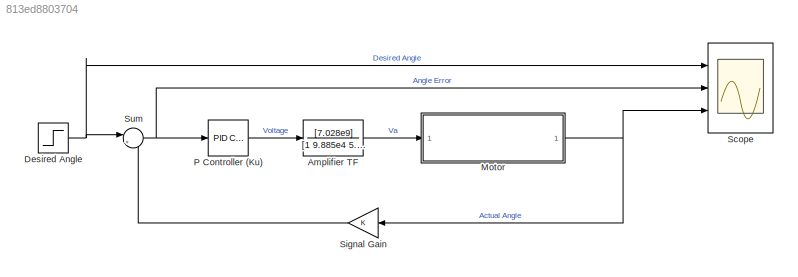
MODEL slx_813ed8803704
KIND model
CONFIG AbsTol = auto
CONFIG EnableMultiTasking = off
CONFIG FixedStep = auto
CONFIG MaxStep = auto
CONFIG MinStep = auto
CONFIG RelTol = 1e-3
CONFIG SampleTimeConstraint = Unconstrained
CONFIG SolverName = VariableStepAuto
CONFIG StartTime = 0.0
CONFIG StopTime = 4
BLOCK [TransferFcn] Amplifier TF
  Denominator = [1 9.885e4 5.876e9]
  Numerator = [7.028e9]
BLOCK [Step] Desired Angle
  After = pi/2
  SampleTime = 0
BLOCK [ModelReference] Motor
  ModelNameDialog = motor.mdl
  ModelReferenceVersion = 8.12
  Ports = [1, 1]
BLOCK [Reference] P Controller (Ku)  REF=pid_lib/PID Controller
  Ports = [1, 1]
  SourceBlock = pid_lib/PID Controller
  SourceProductBaseCode = SL
  SourceType = PID 1dof
BLOCK [Scope] Scope
  Floating = off
  NumInputPorts = 3
  Ports = [3]
  ScopeSpecificationString = Simulink.scopes.TimeScopeBlockCfg('CurrentConfiguration', extmgr.ConfigurationSet(extmgr.Configuration('Core','General UI',true),extmgr.Configuration('Core','Source UI',true),extmgr.Configuration('Sources','WiredSimulink',true),extmgr.Configuration('Visuals','Time Domain',true,'SerializedDisplays',{struct('MinYLimReal','-1.21412','MaxYLimReal','2.78491','YLabelReal','','MinYLimMag','0.00000','MaxY...<+1467ch>
BLOCK [Gain] Signal Gain
  NameLocation = top
BLOCK [Sum] Sum
  Inputs = |+-
  Ports = [2, 1]
LINE Amplifier TF:1 -> Motor:1
NET Desired Angle:1 -> Scope:1, Sum:1
NET Motor:1 -> Scope:3, Signal Gain:1
LINE P Controller (Ku):1 -> Amplifier TF:1
LINE Signal Gain:1 -> Sum:2
NET Sum:1 -> P Controller (Ku):1, Scope:2
note: NET lines group one-source signal fan-out (src -> all destinations, sorted); 1:1 wires keep LINE
